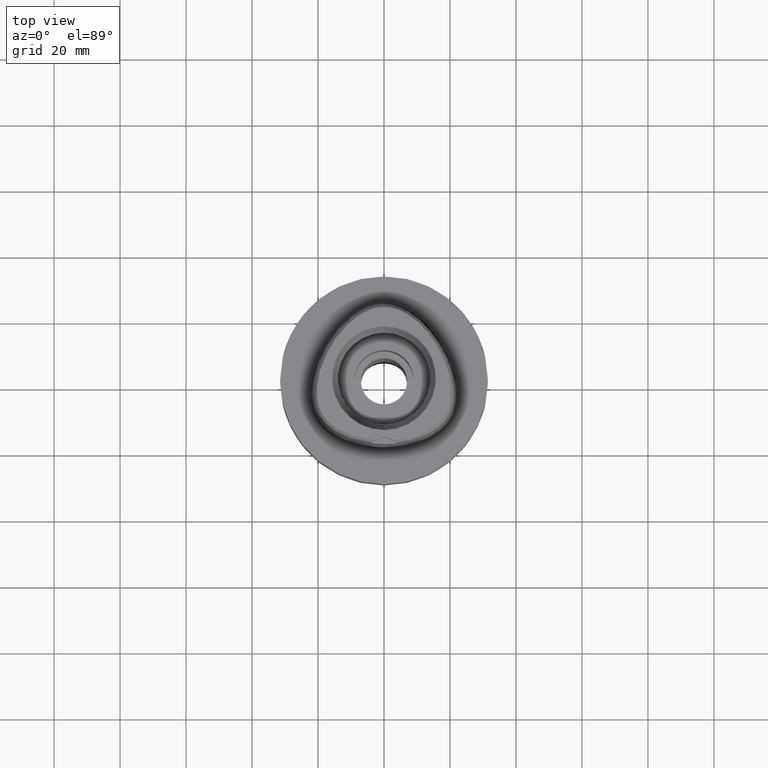
[diagram: clean part render]
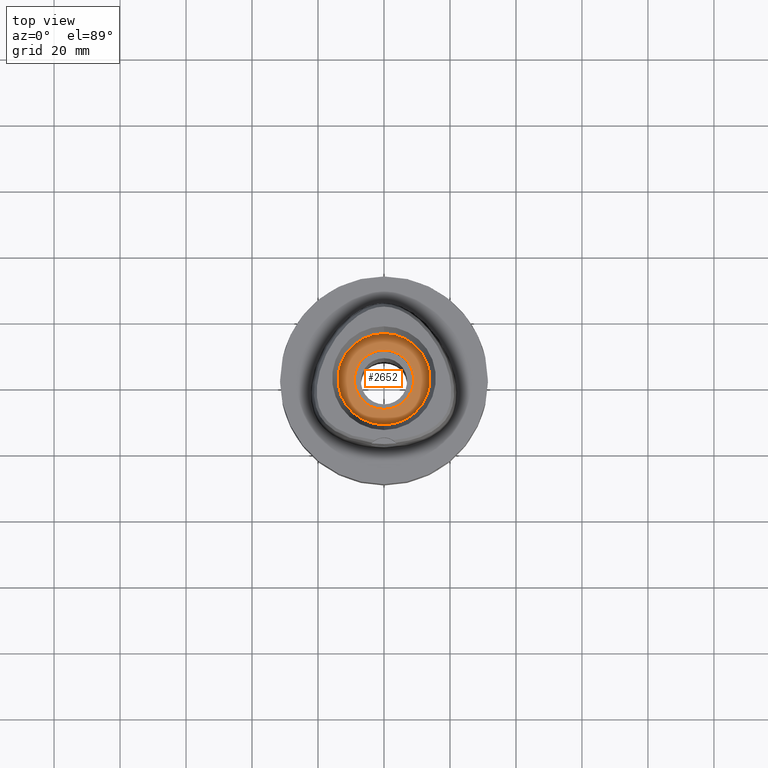
[diagram: same view with one face highlighted and labeled with its STEP entity id]
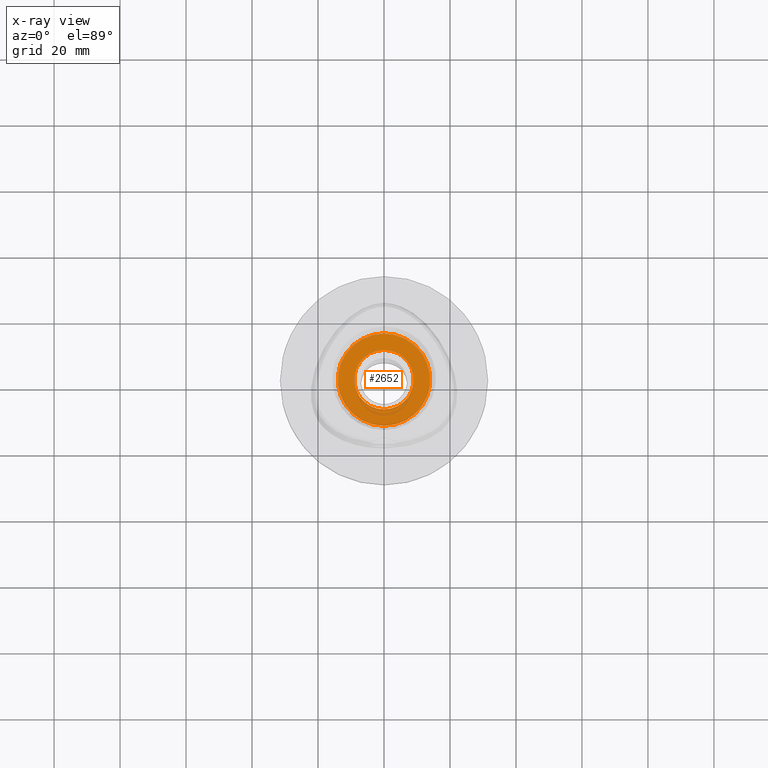
[diagram: x-ray of the same camera — body ghosted, the highlighted face saturated]
A machine part, top view. The second image highlights one B-rep face of the part: STEP entity #2652.
The next image is the same camera in x-ray: the body ghosted, the highlighted face saturated — about 0% of this face is hidden behind the body in this view.
In plain terms, the highlighted planar face has unit normal (0, 0, -1).
Its self-contained STEP definition (entity closure, byte-faithful):
#745=CARTESIAN_POINT('',(0.E0,0.E0,1.1E1));
#746=DIRECTION('',(0.E0,0.E0,-1.E0));
#747=DIRECTION('',(0.E0,1.E0,0.E0));
#748=AXIS2_PLACEMENT_3D('',#745,#746,#747);
#753=CARTESIAN_POINT('',(0.E0,0.E0,1.1E1));
#754=DIRECTION('',(0.E0,0.E0,-1.E0));
#755=DIRECTION('',(0.E0,-1.E0,0.E0));
#756=AXIS2_PLACEMENT_3D('',#753,#754,#755);
#761=CARTESIAN_POINT('',(0.E0,0.E0,1.1E1));
#762=DIRECTION('',(0.E0,0.E0,1.E0));
#763=DIRECTION('',(0.E0,1.E0,0.E0));
#764=AXIS2_PLACEMENT_3D('',#761,#762,#763);
#769=CARTESIAN_POINT('',(0.E0,0.E0,1.1E1));
#770=DIRECTION('',(0.E0,0.E0,1.E0));
#771=DIRECTION('',(0.E0,-1.E0,0.E0));
#772=AXIS2_PLACEMENT_3D('',#769,#770,#771);
#1558=CARTESIAN_POINT('',(0.E0,9.E0,1.1E1));
#1559=VERTEX_POINT('',#1558);
#1560=CARTESIAN_POINT('',(0.E0,-9.E0,1.1E1));
#1561=VERTEX_POINT('',#1560);
#1562=CARTESIAN_POINT('',(0.E0,1.4E1,1.1E1));
#1563=CARTESIAN_POINT('',(0.E0,-1.4E1,1.1E1));
#1564=VERTEX_POINT('',#1562);
#1565=VERTEX_POINT('',#1563);
#2637=CARTESIAN_POINT('',(0.E0,0.E0,1.1E1));
#2638=DIRECTION('',(0.E0,0.E0,-1.E0));
#2639=DIRECTION('',(0.E0,-1.E0,0.E0));
#2640=AXIS2_PLACEMENT_3D('',#2637,#2638,#2639);
#2641=PLANE('',#2640);
#2643=ORIENTED_EDGE('',*,*,#2642,.T.);
#2645=ORIENTED_EDGE('',*,*,#2644,.T.);
#2646=EDGE_LOOP('',(#2643,#2645));
#2647=FACE_OUTER_BOUND('',#2646,.F.);
#2648=ORIENTED_EDGE('',*,*,#2619,.T.);
#2649=ORIENTED_EDGE('',*,*,#2632,.T.);
#2650=EDGE_LOOP('',(#2648,#2649));
#2651=FACE_BOUND('',#2650,.F.);
#749=CIRCLE('',#748,1.4E1);
#757=CIRCLE('',#756,1.4E1);
#765=CIRCLE('',#764,9.E0);
#773=CIRCLE('',#772,9.E0);
#2619=EDGE_CURVE('',#1559,#1561,#765,.T.);
#2632=EDGE_CURVE('',#1561,#1559,#773,.T.);
#2642=EDGE_CURVE('',#1564,#1565,#749,.T.);
#2644=EDGE_CURVE('',#1565,#1564,#757,.T.);
#2652=ADVANCED_FACE('',(#2647,#2651),#2641,.F.);